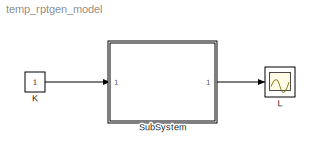
MODEL temp_rptgen_model
KIND model
CONFIG AbsTol = auto
CONFIG FixedStep = auto
CONFIG MaxStep = auto
CONFIG RelTol = 1e-3
CONFIG Solver = FixedStepDiscrete
CONFIG SolverMode = SingleTasking
CONFIG StartTime = 0.0
CONFIG StopTime = 10.0
BLOCK [Constant] K
  Value = 1
BLOCK [Scope] L
  DataFormat = Matrix
  Decimation = 1
  Floating = off
  Grid = on
  LimitMaxRows = on
  MaxRows = 5000
  NumInputPorts = 1
  Ports = [1, 0, 0, 0, 0]
  SampleInput = off
  SampleTime = 0
  SaveName = ScopeData
  SaveToWorkspace = off
  TickLabels = on
  TimeRange = auto
  YMax = 5
  YMin = -5
  ZoomMode = on
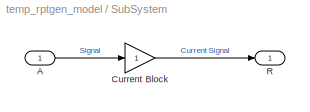
BLOCK [SubSystem] SubSystem
  Description = Selected by zslmethods/tempmodel as the current system
  Ports = [1, 1, 0, 0, 0]
  ShowPortLabels = on
  Tag = TempmodelCurrentSystem
BLOCK [Inport] SubSystem/A
  DataType = auto
  Port = 1
  PortWidth = -1
  SampleTime = -1
  SignalType = auto
BLOCK [Gain] SubSystem/Current Block
  Description = This block is selected by zslmethods/tempmodel as the \"current\" block
  Gain = 1
  SaturateOnIntegerOverflow = on
  Tag = TempmodelCurrentBlock
BLOCK [Outport] SubSystem/R
  InitialOutput = []
  OutputWhenDisabled = held
  Port = 1
LINE K:1 -> SubSystem:1
LINE SubSystem/A:1 -> SubSystem/Current Block:1
LINE SubSystem/Current Block:1 -> SubSystem/R:1
LINE SubSystem:1 -> L:1
